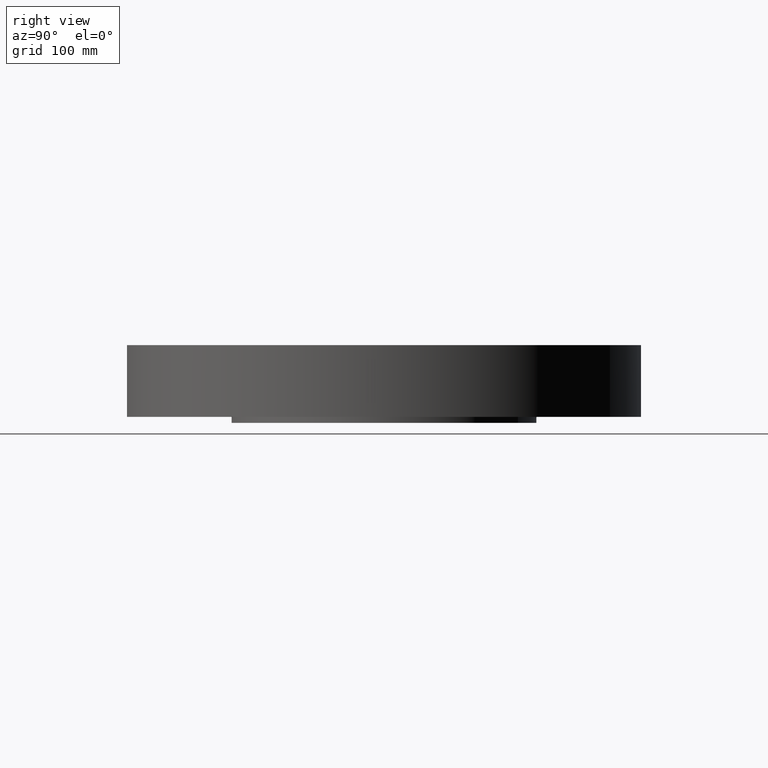
[diagram: clean part render]
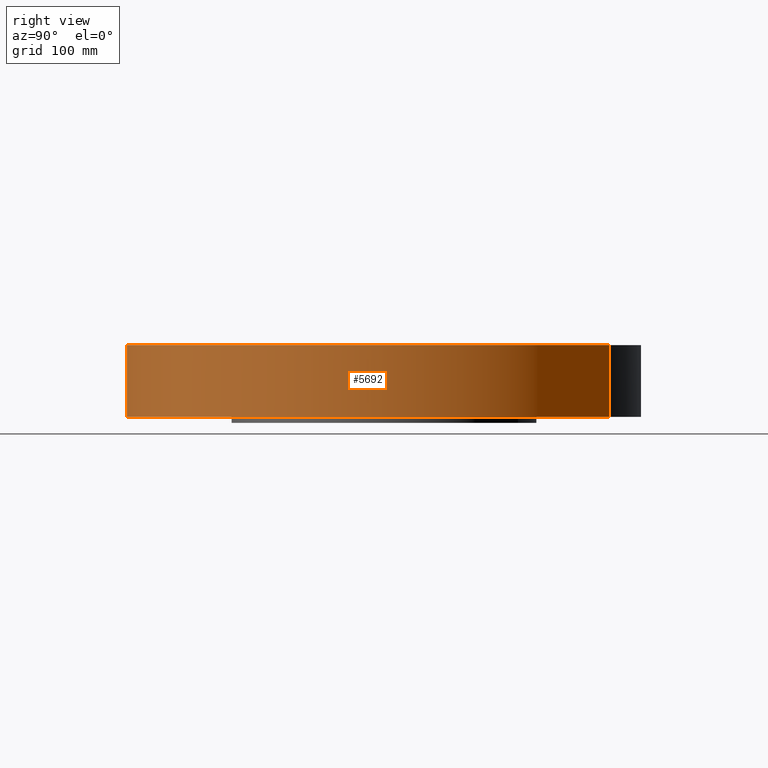
[diagram: same view with one face highlighted and labeled with its STEP entity id]
A machine part, right view. The second image highlights one B-rep face of the part: STEP entity #5692.
In plain terms, the highlighted cylindrical surface (partial cylindrical patch) has radius 273.05 mm, axis along (0, 0, -1).
Its self-contained STEP definition (entity closure, byte-faithful):
#4897=AXIS2_PLACEMENT_3D('Circle Axis2P3D',#4895,#4896,$) ;
#5653=AXIS2_PLACEMENT_3D('Cylinder Axis2P3D',#5650,#5651,#5652) ;
#5683=AXIS2_PLACEMENT_3D('Circle Axis2P3D',#5681,#5682,$) ;
#4890=CARTESIAN_POINT('Vertex',(-5.15382454002,-9.43401254036,-4.25206676518E-014)) ;
#4892=CARTESIAN_POINT('Vertex',(5.15382454002,9.43401254036,-4.25206676518E-014)) ;
#4895=CARTESIAN_POINT('Axis2P3D Location',(0.,0.,0.)) ;
#5650=CARTESIAN_POINT('Axis2P3D Location',(0.,0.,1.37500000001)) ;
#5655=CARTESIAN_POINT('Line Origine',(-5.15382454002,-9.43401254036,1.50000000001)) ;
#5659=CARTESIAN_POINT('Vertex',(-5.15382454002,-9.43401254036,3.00000000001)) ;
#5666=CARTESIAN_POINT('Vertex',(5.15382454002,9.43401254036,3.00000000001)) ;
#5669=CARTESIAN_POINT('Line Origine',(5.15382454002,9.43401254036,1.50000000001)) ;
#5681=CARTESIAN_POINT('Axis2P3D Location',(0.,0.,3.00000000001)) ;
#4896=DIRECTION('Axis2P3D Direction',(0.,0.,-0.0393700787402)) ;
#5651=DIRECTION('Axis2P3D Direction',(0.,0.,-0.0393700787402)) ;
#5652=DIRECTION('Axis2P3D XDirection',(0.0188750212049,0.0345504945626,0.)) ;
#5656=DIRECTION('Vector Direction',(0.,0.,-0.0393700787402)) ;
#5670=DIRECTION('Vector Direction',(0.,0.,-0.0393700787402)) ;
#5682=DIRECTION('Axis2P3D Direction',(0.,0.,-0.0393700787402)) ;
#5657=VECTOR('Line Direction',#5656,0.0393700787402) ;
#5671=VECTOR('Line Direction',#5670,0.0393700787402) ;
#5687=ORIENTED_EDGE('',*,*,#4899,.F.) ;
#5688=ORIENTED_EDGE('',*,*,#5673,.T.) ;
#5689=ORIENTED_EDGE('',*,*,#5685,.T.) ;
#5690=ORIENTED_EDGE('',*,*,#5661,.F.) ;
#5692=ADVANCED_FACE('PartBody',(#5691),#5654,.T.) ;
#4898=CIRCLE('generated circle',#4897,10.75) ;
#5684=CIRCLE('generated circle',#5683,10.75) ;
#5654=CYLINDRICAL_SURFACE('generated cylinder',#5653,10.75) ;
#4899=EDGE_CURVE('',#4893,#4891,#4898,.T.) ;
#5661=EDGE_CURVE('',#4891,#5660,#5658,.F.) ;
#5673=EDGE_CURVE('',#4893,#5667,#5672,.F.) ;
#5685=EDGE_CURVE('',#5667,#5660,#5684,.T.) ;
#5686=EDGE_LOOP('',(#5687,#5688,#5689,#5690)) ;
#5691=FACE_OUTER_BOUND('',#5686,.T.) ;
#5658=LINE('Line',#5655,#5657) ;
#5672=LINE('Line',#5669,#5671) ;
#4891=VERTEX_POINT('',#4890) ;
#4893=VERTEX_POINT('',#4892) ;
#5660=VERTEX_POINT('',#5659) ;
#5667=VERTEX_POINT('',#5666) ;